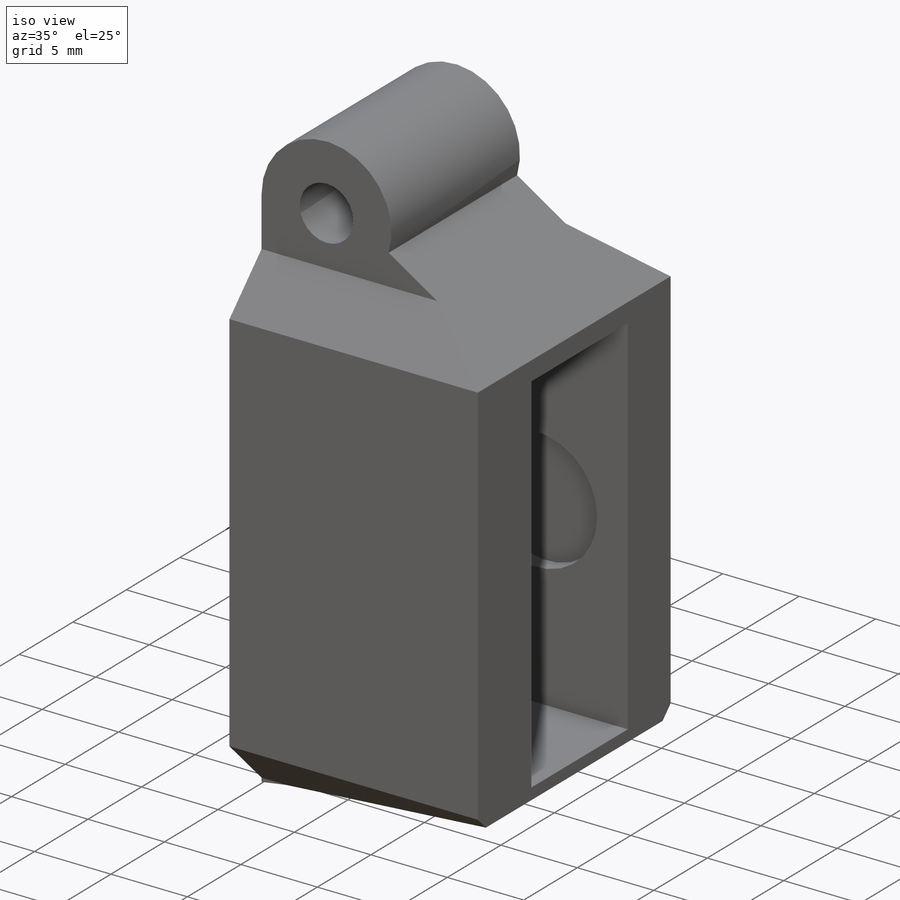
[diagram: iso view]
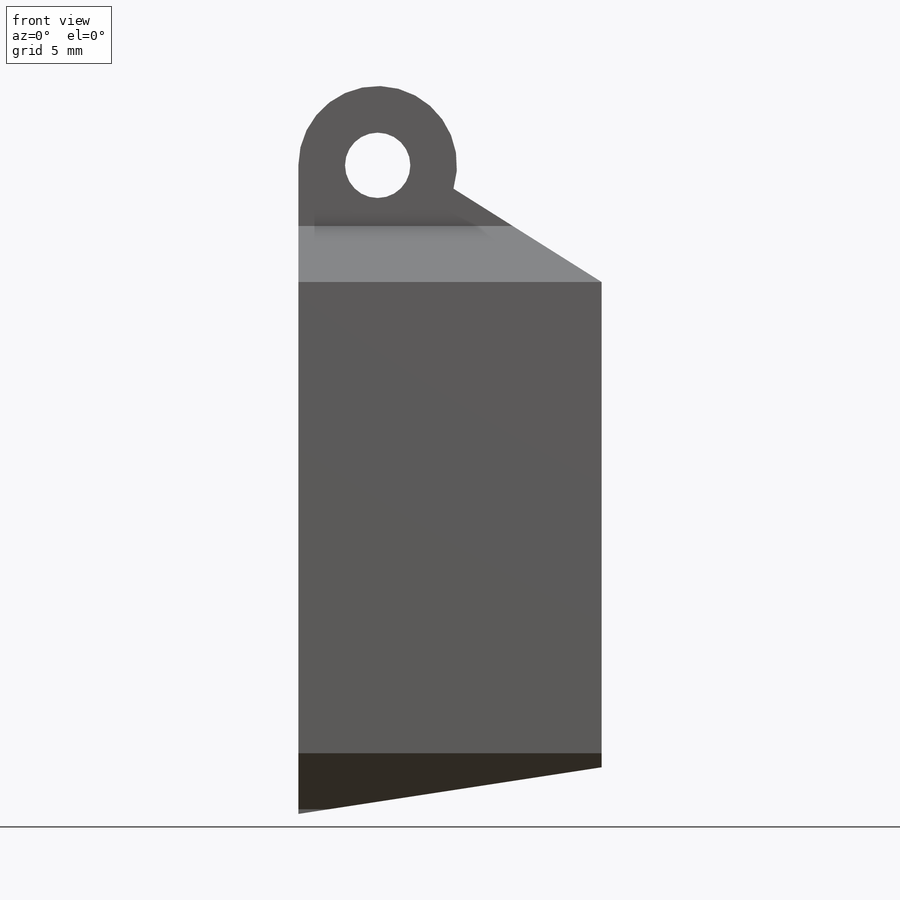
[diagram: front view]
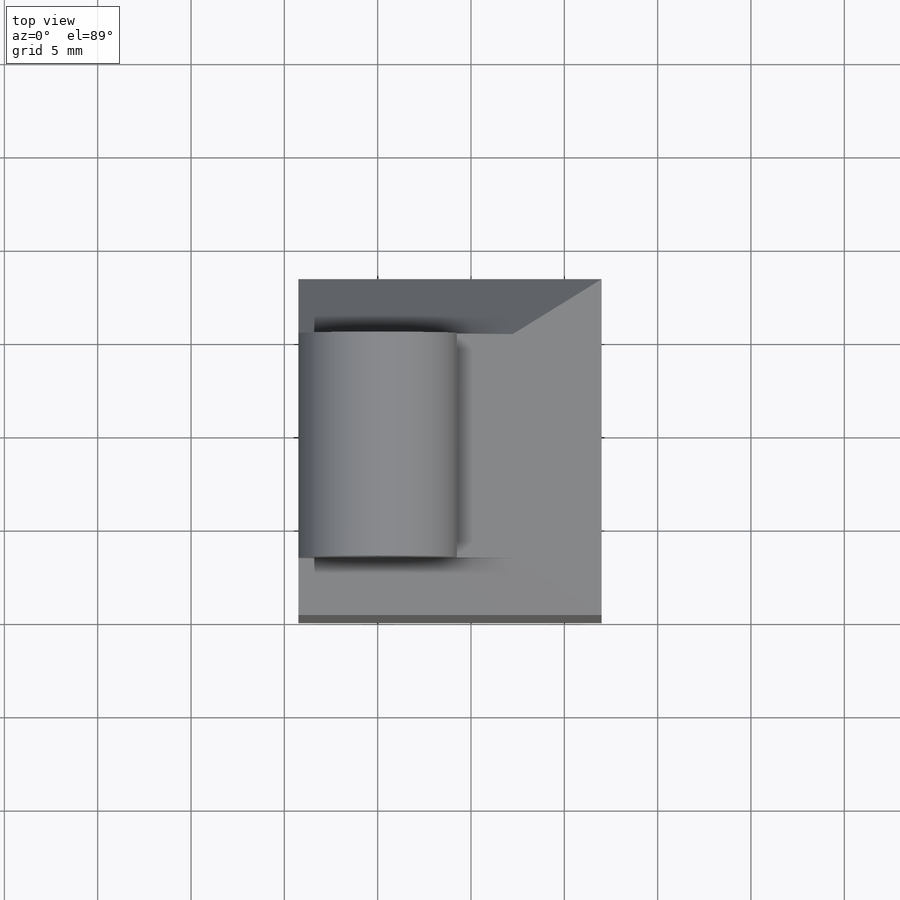
[diagram: top view]
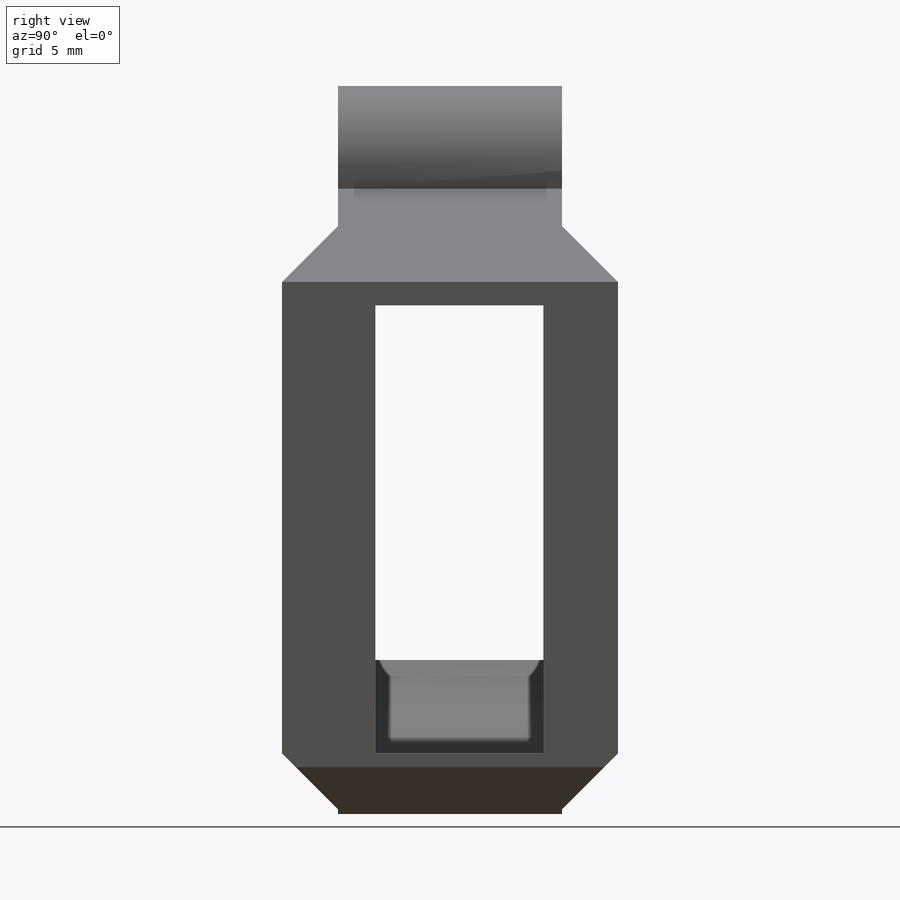
[diagram: right view]
SOLIDWORKS PART (.sldprt)
format: sldprt  version: not decoded by parser v0  size: 262,144 bytes
history: native  units: mm
features: sketch x6, extrude x4, cut_extrude x2, material x1, chamfer x1 (+11 scaffold rows collapsed)
feature tree (25):
  scaffold x11  (default folders/planes/origin — collapsed)
  material  "ABS PC"
  sketch  "Sketch1"  dims[c1.D1=~17.444428mm c1.D2=3.5mm c1.D3=~17.444428mm c2.D1=2.5mm c2.D3=2.5mm c2.D4=10.0mm c2.D5=~8.367281mm c3.D1=12.0mm c3.D4=5.0mm c3.D5=1.25mm c3.D6=26.0mm c3.D7=28.5mm]
  extrude  "Boss-Extrude1"  Depth=12mm
  sketch  "Sketch3"  dims[c1.D1=~5.598651mm c1.D2=~12.280912mm c2.D1=24.0mm c2.D2=9.0mm c2.D3=9.0mm c3.D3=90.0deg c4.D3=6.25mm c4.D4=2.0mm]
  cut_extrude  "Cut-Extrude1"  [1 undecoded]
  sketch  "Sketch4"  dims[c1.D1=~6.747643mm c1.D2=8.0mm c1.D3=8.0mm c2.D1=19.5mm c2.D3=6.0mm]
  cut_extrude  "Cut-Extrude2"  Depth=13mm
  sketch  "Sketch5"  dims[c1.D1=~8.979118mm c1.D2=~12.412192mm c2.D1=5.0mm]
  extrude  "Boss-Extrude2"  [1 undecoded]
  sketch  "Sketch6"  dims[D1=16.25mm D2=~25.189336mm]
  extrude  "Boss-Extrude3"  Depth=3mm
  sketch  "Sketch7"  dims[D1=16.25mm D2=~25.609132mm]
  extrude  "Boss-Extrude4"  Depth=3mm
  chamfer  "Chamfer1"  Distance=3mm Angle=45deg
decode coverage: 11 of 13 modeling features carry decoded parameters
note: ~ marks probable driven/reference dimensions
note: 2 parameter values undecoded
note: suppression state not decoded; provenance and decode notes live in map.json
